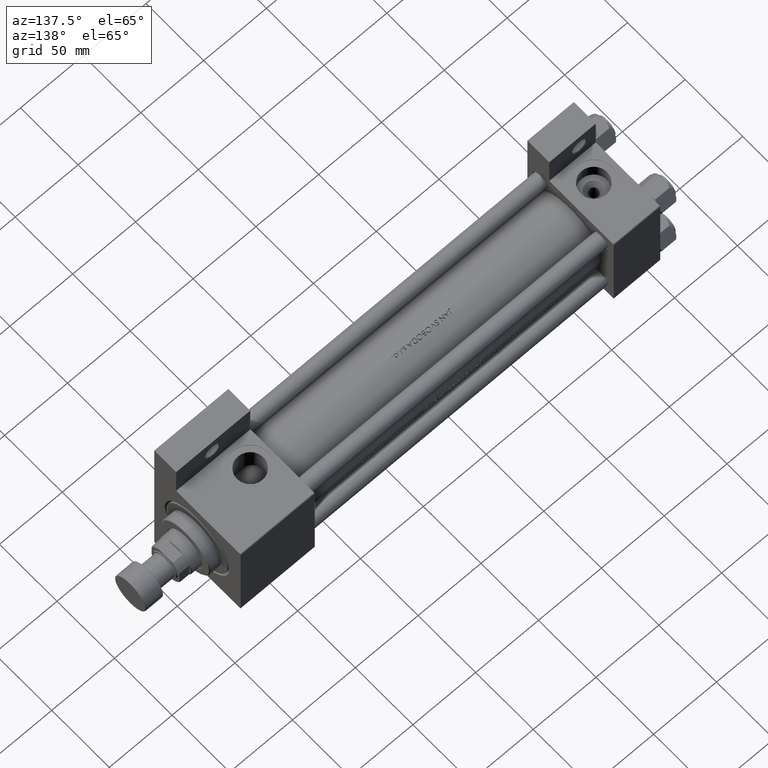
[diagram: clean part render]
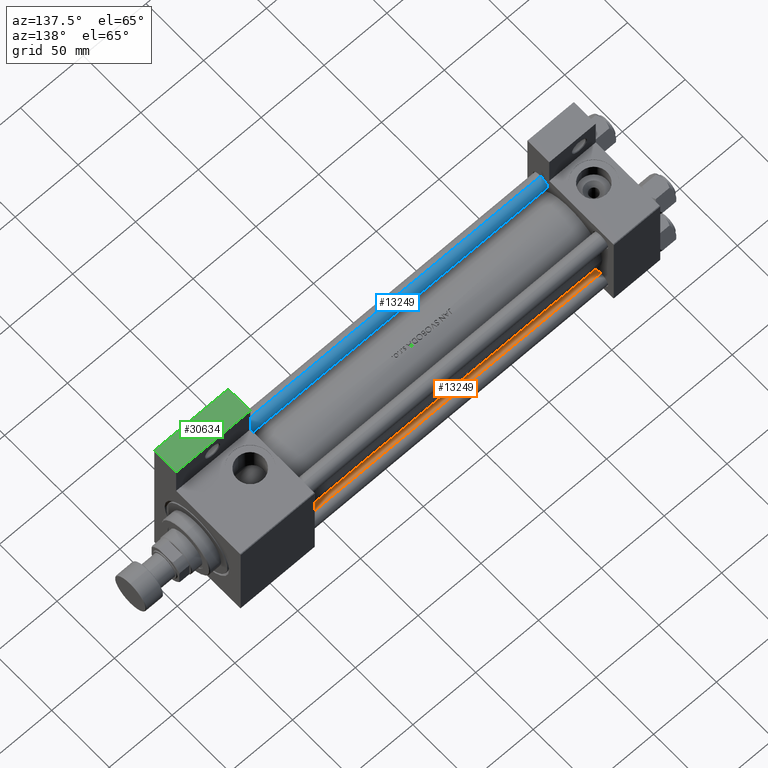
[diagram: same view with three faces highlighted in distinct colors, each labeled with its STEP entity id]
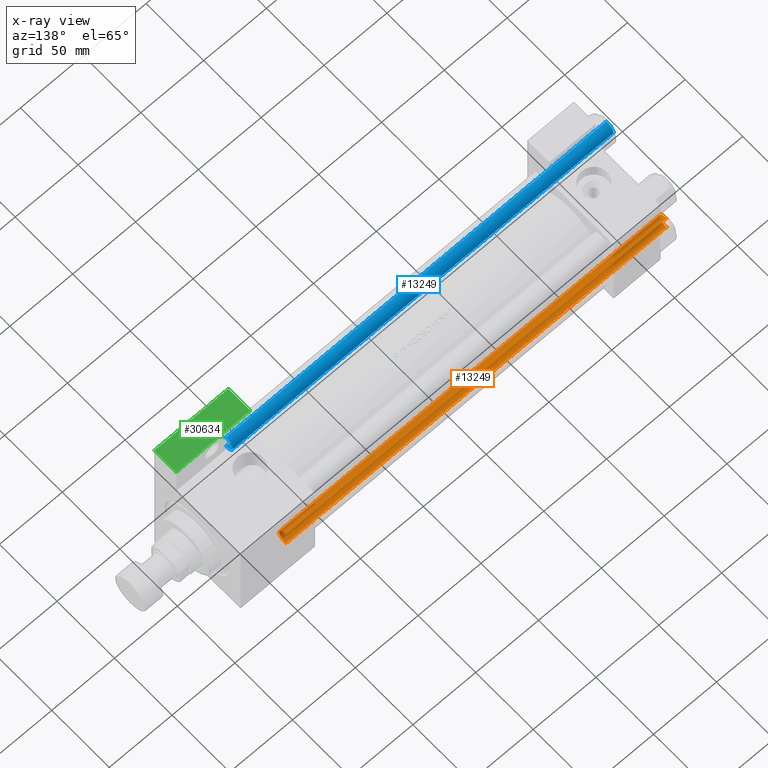
[diagram: x-ray of the same camera — body ghosted, the three highlighted faces saturated]
A machine part, auxiliary view with three faces highlighted in distinct colors.
The next image is the same camera in x-ray (body ghosted, the three faces saturated) — at least one of them is partly hidden behind the body in this view.
Their STEP definitions:

[orange] entity #13249 — the highlighted cylindrical surface (edge-blend (fillet) strip) has radius 6 mm, axis along (1, -0, -0).
#782 = DIRECTION ( 'NONE',  ( -0.000000000000000000, -0.000000000000000000, 1.000000000000000000 ) ) ;
#1279 = DIRECTION ( 'NONE',  ( 1.000000000000000000, 0.000000000000000000, 0.000000000000000000 ) ) ;
#1944 = CIRCLE ( 'NONE', #30244, 6.000000000000000888 ) ;
#4173 = VERTEX_POINT ( 'NONE', #19332 ) ;
#7180 = CARTESIAN_POINT ( 'NONE',  ( 0.000000000000000000, 0.000000000000000000, 304.0000000000000000 ) ) ;
#8433 = CARTESIAN_POINT ( 'NONE',  ( -6.000000000000000888, 0.000000000000000000, 304.0000000000000000 ) ) ;
#9984 = CARTESIAN_POINT ( 'NONE',  ( 6.000000000000000888, 7.347880794884120722E-16, 303.5000000000000000 ) ) ;
#11012 = CARTESIAN_POINT ( 'NONE',  ( 6.000000000000000888, 7.347880794884120722E-16, 0.4999999999999449329 ) ) ;
#12041 = VERTEX_POINT ( 'NONE', #31762 ) ;
#12413 = AXIS2_PLACEMENT_3D ( 'NONE', #19531, #782, #46827 ) ;
#13249 = ADVANCED_FACE ( 'NONE', ( #26935 ), #42100, .T. ) ;
#15107 = VECTOR ( 'NONE', #26827, 1000.000000000000000 ) ;
#15152 = EDGE_CURVE ( 'NONE', #16441, #23066, #34902, .T. ) ;
#15762 = EDGE_CURVE ( 'NONE', #12041, #4173, #31239, .T. ) ;
#16441 = VERTEX_POINT ( 'NONE', #9984 ) ;
#19332 = CARTESIAN_POINT ( 'NONE',  ( -6.000000000000000888, 0.000000000000000000, 0.4999999999999449329 ) ) ;
#19531 = CARTESIAN_POINT ( 'NONE',  ( 0.000000000000000000, 0.000000000000000000, 0.4999999999999449329 ) ) ;
#22773 = CARTESIAN_POINT ( 'NONE',  ( 6.000000000000000888, 7.347880794884120722E-16, 304.0000000000000000 ) ) ;
#22883 = DIRECTION ( 'NONE',  ( -1.000000000000000000, 0.000000000000000000, 0.000000000000000000 ) ) ;
#23066 = VERTEX_POINT ( 'NONE', #11012 ) ;
#26827 = DIRECTION ( 'NONE',  ( -0.000000000000000000, -0.000000000000000000, -1.000000000000000000 ) ) ;
#26935 = FACE_OUTER_BOUND ( 'NONE', #49213, .T. ) ;
#27795 = CIRCLE ( 'NONE', #12413, 6.000000000000000888 ) ;
#30244 = AXIS2_PLACEMENT_3D ( 'NONE', #47569, #48306, #1279 ) ;
#31239 = LINE ( 'NONE', #8433, #49075 ) ;
#31732 = DIRECTION ( 'NONE',  ( -0.000000000000000000, -0.000000000000000000, -1.000000000000000000 ) ) ;
#31762 = CARTESIAN_POINT ( 'NONE',  ( -6.000000000000000888, 0.000000000000000000, 303.5000000000000000 ) ) ;
#34303 = ORIENTED_EDGE ( 'NONE', *, *, #38636, .T. ) ;
#34902 = LINE ( 'NONE', #22773, #15107 ) ;
#37301 = ORIENTED_EDGE ( 'NONE', *, *, #15152, .F. ) ;
#38301 = DIRECTION ( 'NONE',  ( -0.000000000000000000, -0.000000000000000000, -1.000000000000000000 ) ) ;
#38571 = EDGE_CURVE ( 'NONE', #4173, #23066, #27795, .T. ) ;
#38636 = EDGE_CURVE ( 'NONE', #16441, #12041, #1944, .T. ) ;
#41211 = ORIENTED_EDGE ( 'NONE', *, *, #15762, .T. ) ;
#42100 = CYLINDRICAL_SURFACE ( 'NONE', #44961, 6.000000000000000888 ) ;
#44868 = ORIENTED_EDGE ( 'NONE', *, *, #38571, .T. ) ;
#44961 = AXIS2_PLACEMENT_3D ( 'NONE', #7180, #38301, #22883 ) ;
#46827 = DIRECTION ( 'NONE',  ( 1.000000000000000000, 0.000000000000000000, 0.000000000000000000 ) ) ;
#47569 = CARTESIAN_POINT ( 'NONE',  ( 0.000000000000000000, 0.000000000000000000, 303.5000000000000000 ) ) ;
#48306 = DIRECTION ( 'NONE',  ( 0.000000000000000000, 0.000000000000000000, -1.000000000000000000 ) ) ;
#49075 = VECTOR ( 'NONE', #31732, 1000.000000000000000 ) ;
#49213 = EDGE_LOOP ( 'NONE', ( #37301, #34303, #41211, #44868 ) ) ;

[blue] entity #13249 — the highlighted cylindrical surface (edge-blend (fillet) strip) has radius 6 mm, axis along (1, 0, 0).
#782 = DIRECTION ( 'NONE',  ( -0.000000000000000000, -0.000000000000000000, 1.000000000000000000 ) ) ;
#1279 = DIRECTION ( 'NONE',  ( 1.000000000000000000, 0.000000000000000000, 0.000000000000000000 ) ) ;
#1944 = CIRCLE ( 'NONE', #30244, 6.000000000000000888 ) ;
#4173 = VERTEX_POINT ( 'NONE', #19332 ) ;
#7180 = CARTESIAN_POINT ( 'NONE',  ( 0.000000000000000000, 0.000000000000000000, 304.0000000000000000 ) ) ;
#8433 = CARTESIAN_POINT ( 'NONE',  ( -6.000000000000000888, 0.000000000000000000, 304.0000000000000000 ) ) ;
#9984 = CARTESIAN_POINT ( 'NONE',  ( 6.000000000000000888, 7.347880794884120722E-16, 303.5000000000000000 ) ) ;
#11012 = CARTESIAN_POINT ( 'NONE',  ( 6.000000000000000888, 7.347880794884120722E-16, 0.4999999999999449329 ) ) ;
#12041 = VERTEX_POINT ( 'NONE', #31762 ) ;
#12413 = AXIS2_PLACEMENT_3D ( 'NONE', #19531, #782, #46827 ) ;
#13249 = ADVANCED_FACE ( 'NONE', ( #26935 ), #42100, .T. ) ;
#15107 = VECTOR ( 'NONE', #26827, 1000.000000000000000 ) ;
#15152 = EDGE_CURVE ( 'NONE', #16441, #23066, #34902, .T. ) ;
#15762 = EDGE_CURVE ( 'NONE', #12041, #4173, #31239, .T. ) ;
#16441 = VERTEX_POINT ( 'NONE', #9984 ) ;
#19332 = CARTESIAN_POINT ( 'NONE',  ( -6.000000000000000888, 0.000000000000000000, 0.4999999999999449329 ) ) ;
#19531 = CARTESIAN_POINT ( 'NONE',  ( 0.000000000000000000, 0.000000000000000000, 0.4999999999999449329 ) ) ;
#22773 = CARTESIAN_POINT ( 'NONE',  ( 6.000000000000000888, 7.347880794884120722E-16, 304.0000000000000000 ) ) ;
#22883 = DIRECTION ( 'NONE',  ( -1.000000000000000000, 0.000000000000000000, 0.000000000000000000 ) ) ;
#23066 = VERTEX_POINT ( 'NONE', #11012 ) ;
#26827 = DIRECTION ( 'NONE',  ( -0.000000000000000000, -0.000000000000000000, -1.000000000000000000 ) ) ;
#26935 = FACE_OUTER_BOUND ( 'NONE', #49213, .T. ) ;
#27795 = CIRCLE ( 'NONE', #12413, 6.000000000000000888 ) ;
#30244 = AXIS2_PLACEMENT_3D ( 'NONE', #47569, #48306, #1279 ) ;
#31239 = LINE ( 'NONE', #8433, #49075 ) ;
#31732 = DIRECTION ( 'NONE',  ( -0.000000000000000000, -0.000000000000000000, -1.000000000000000000 ) ) ;
#31762 = CARTESIAN_POINT ( 'NONE',  ( -6.000000000000000888, 0.000000000000000000, 303.5000000000000000 ) ) ;
#34303 = ORIENTED_EDGE ( 'NONE', *, *, #38636, .T. ) ;
#34902 = LINE ( 'NONE', #22773, #15107 ) ;
#37301 = ORIENTED_EDGE ( 'NONE', *, *, #15152, .F. ) ;
#38301 = DIRECTION ( 'NONE',  ( -0.000000000000000000, -0.000000000000000000, -1.000000000000000000 ) ) ;
#38571 = EDGE_CURVE ( 'NONE', #4173, #23066, #27795, .T. ) ;
#38636 = EDGE_CURVE ( 'NONE', #16441, #12041, #1944, .T. ) ;
#41211 = ORIENTED_EDGE ( 'NONE', *, *, #15762, .T. ) ;
#42100 = CYLINDRICAL_SURFACE ( 'NONE', #44961, 6.000000000000000888 ) ;
#44868 = ORIENTED_EDGE ( 'NONE', *, *, #38571, .T. ) ;
#44961 = AXIS2_PLACEMENT_3D ( 'NONE', #7180, #38301, #22883 ) ;
#46827 = DIRECTION ( 'NONE',  ( 1.000000000000000000, 0.000000000000000000, 0.000000000000000000 ) ) ;
#47569 = CARTESIAN_POINT ( 'NONE',  ( 0.000000000000000000, 0.000000000000000000, 303.5000000000000000 ) ) ;
#48306 = DIRECTION ( 'NONE',  ( 0.000000000000000000, 0.000000000000000000, -1.000000000000000000 ) ) ;
#49075 = VECTOR ( 'NONE', #31732, 1000.000000000000000 ) ;
#49213 = EDGE_LOOP ( 'NONE', ( #37301, #34303, #41211, #44868 ) ) ;

[green] entity #30634 — the highlighted planar face has unit normal (0, 0, 1).
#770 = EDGE_CURVE ( 'NONE', #17941, #47607, #34597, .T. ) ;
#1852 = VECTOR ( 'NONE', #19682, 1000.000000000000000 ) ;
#4082 = LINE ( 'NONE', #30674, #43741 ) ;
#4092 = DIRECTION ( 'NONE',  ( 0.000000000000000000, -0.000000000000000000, -1.000000000000000000 ) ) ;
#4110 = ORIENTED_EDGE ( 'NONE', *, *, #35530, .F. ) ;
#4224 = CARTESIAN_POINT ( 'NONE',  ( 274.9999999999999432, -63.50000000000002842, -18.50000000000000000 ) ) ;
#4841 = CARTESIAN_POINT ( 'NONE',  ( 274.9999999999999432, -63.50000000000002842, -18.50000000000000000 ) ) ;
#6692 = VERTEX_POINT ( 'NONE', #42587 ) ;
#9480 = CARTESIAN_POINT ( 'NONE',  ( 333.9999999999999432, -63.50000000000002842, -18.50000000000000000 ) ) ;
#9865 = AXIS2_PLACEMENT_3D ( 'NONE', #4841, #35714, #4092 ) ;
#11949 = DIRECTION ( 'NONE',  ( 0.000000000000000000, 0.000000000000000000, -1.000000000000000000 ) ) ;
#14789 = ORIENTED_EDGE ( 'NONE', *, *, #770, .T. ) ;
#16487 = FACE_OUTER_BOUND ( 'NONE', #46007, .T. ) ;
#17941 = VERTEX_POINT ( 'NONE', #9480 ) ;
#19682 = DIRECTION ( 'NONE',  ( -1.000000000000000000, -0.000000000000000000, -0.000000000000000000 ) ) ;
#21007 = CARTESIAN_POINT ( 'NONE',  ( 274.9999999999999432, -63.50000000000002842, -18.50000000000000000 ) ) ;
#23864 = CARTESIAN_POINT ( 'NONE',  ( 274.9999999999999432, -63.50000000000002842, -18.50000000000000000 ) ) ;
#25573 = ORIENTED_EDGE ( 'NONE', *, *, #34351, .T. ) ;
#27886 = PLANE ( 'NONE',  #9865 ) ;
#28007 = DIRECTION ( 'NONE',  ( -1.000000000000000000, -0.000000000000000000, -0.000000000000000000 ) ) ;
#28811 = EDGE_CURVE ( 'NONE', #17941, #6692, #4082, .T. ) ;
#30634 = ADVANCED_FACE ( 'NONE', ( #16487 ), #27886, .T. ) ;
#30674 = CARTESIAN_POINT ( 'NONE',  ( 333.9999999999999432, -63.50000000000002842, -18.50000000000000000 ) ) ;
#31197 = LINE ( 'NONE', #23864, #42185 ) ;
#32527 = CARTESIAN_POINT ( 'NONE',  ( 274.9999999999999432, -63.50000000000002842, -37.50000000000000000 ) ) ;
#34351 = EDGE_CURVE ( 'NONE', #47607, #46558, #31197, .T. ) ;
#34597 = LINE ( 'NONE', #4224, #1852 ) ;
#34954 = DIRECTION ( 'NONE',  ( 0.000000000000000000, 0.000000000000000000, -1.000000000000000000 ) ) ;
#35530 = EDGE_CURVE ( 'NONE', #6692, #46558, #47198, .T. ) ;
#35714 = DIRECTION ( 'NONE',  ( 0.000000000000000000, -1.000000000000000000, 0.000000000000000000 ) ) ;
#40829 = ORIENTED_EDGE ( 'NONE', *, *, #28811, .F. ) ;
#42185 = VECTOR ( 'NONE', #11949, 1000.000000000000000 ) ;
#42587 = CARTESIAN_POINT ( 'NONE',  ( 333.9999999999999432, -63.50000000000002842, -37.50000000000000000 ) ) ;
#43018 = VECTOR ( 'NONE', #28007, 1000.000000000000000 ) ;
#43741 = VECTOR ( 'NONE', #34954, 1000.000000000000000 ) ;
#46007 = EDGE_LOOP ( 'NONE', ( #4110, #40829, #14789, #25573 ) ) ;
#46558 = VERTEX_POINT ( 'NONE', #47596 ) ;
#47198 = LINE ( 'NONE', #32527, #43018 ) ;
#47596 = CARTESIAN_POINT ( 'NONE',  ( 274.9999999999999432, -63.50000000000002842, -37.50000000000000000 ) ) ;
#47607 = VERTEX_POINT ( 'NONE', #21007 ) ;